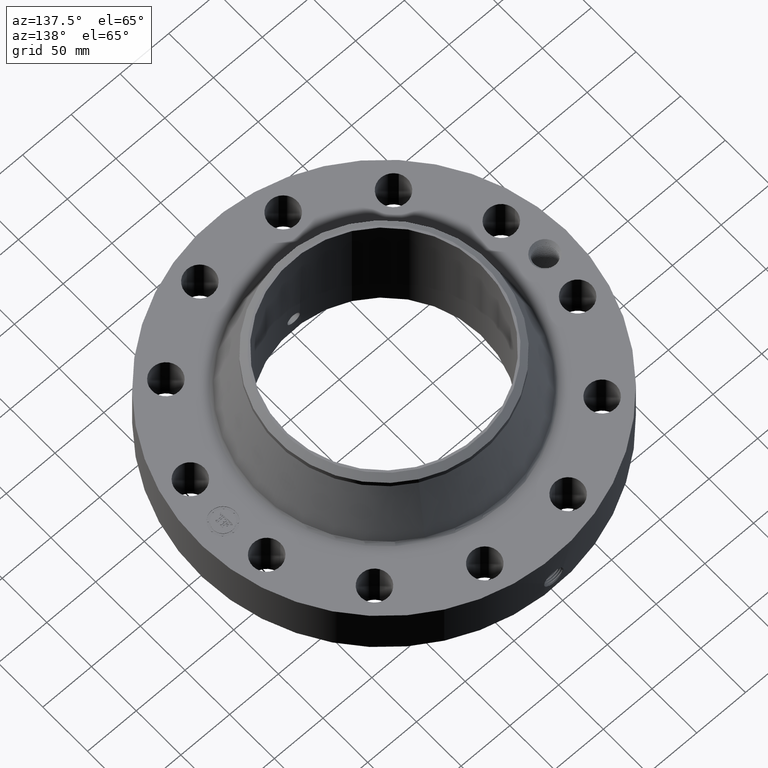
[diagram: clean part render]
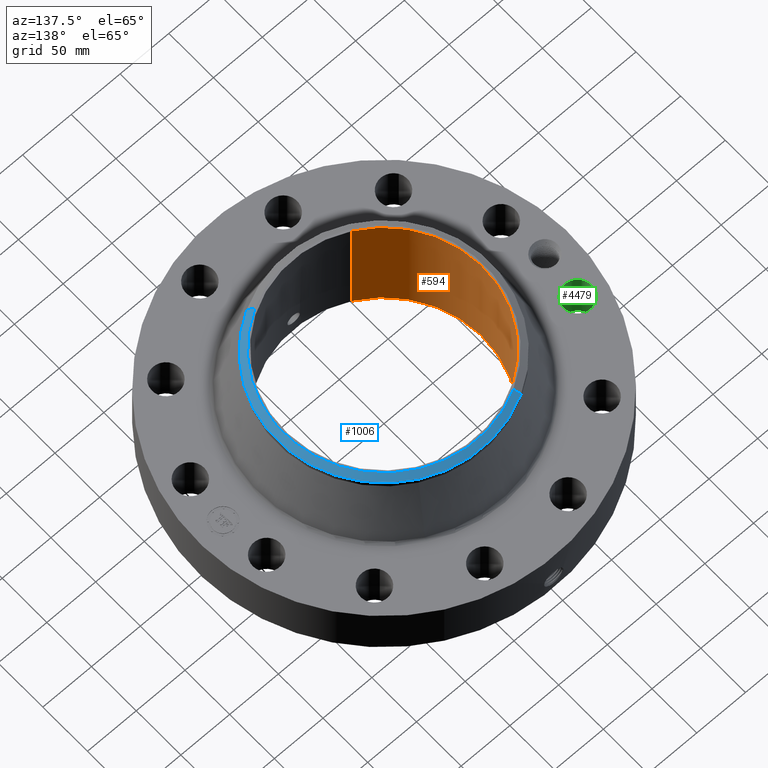
[diagram: same view with three faces highlighted in distinct colors, each labeled with its STEP entity id]
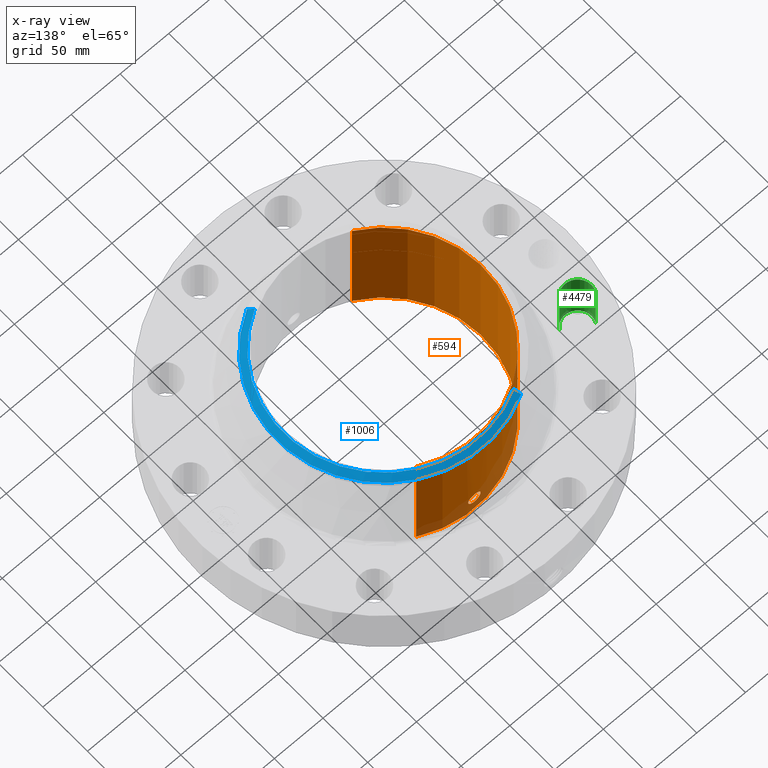
[diagram: x-ray of the same camera — body ghosted, the three highlighted faces saturated]
A machine part, auxiliary view with three faces highlighted in distinct colors.
The next image is the same camera in x-ray (body ghosted, the three faces saturated) — at least one of them is partly hidden behind the body in this view.
Their STEP definitions:

[orange] entity #594 — the highlighted cylindrical surface (partial cylindrical patch) has radius 101.359 mm, axis along (0, 0, -1).
#232=AXIS2_PLACEMENT_3D('Cylinder Axis2P3D',#229,#230,#231) ;
#533=AXIS2_PLACEMENT_3D('Circle Axis2P3D',#531,#532,$) ;
#543=AXIS2_PLACEMENT_3D('Circle Axis2P3D',#541,#542,$) ;
#229=CARTESIAN_POINT('Axis2P3D Location',(0.,0.,2.46600000001)) ;
#238=CARTESIAN_POINT('Vertex',(1.91314761181,3.50199321324,4.93200000002)) ;
#240=CARTESIAN_POINT('Vertex',(-1.91314761181,-3.50199321324,4.93200000002)) ;
#243=CARTESIAN_POINT('Line Origine',(1.91314761181,3.50199321324,2.46600000001)) ;
#247=CARTESIAN_POINT('Vertex',(1.91314761181,3.50199321324,-8.95171950564E-015)) ;
#254=CARTESIAN_POINT('Vertex',(-1.91314761181,-3.50199321324,-8.95171950564E-015)) ;
#257=CARTESIAN_POINT('Line Origine',(-1.91314761181,-3.50199321324,2.46600000001)) ;
#531=CARTESIAN_POINT('Axis2P3D Location',(0.,0.,4.93200000002)) ;
#541=CARTESIAN_POINT('Axis2P3D Location',(0.,0.,-1.00706844438E-014)) ;
#553=CARTESIAN_POINT('Control Point',(0.219395640473,3.98446430566,0.869856384655)) ;
#554=CARTESIAN_POINT('Control Point',(0.206921908806,3.98515114387,0.892689397315)) ;
#555=CARTESIAN_POINT('Control Point',(0.191479279893,3.98595249709,0.913897027814)) ;
#556=CARTESIAN_POINT('Control Point',(0.173347861513,3.98680640055,0.932967267437)) ;
#557=CARTESIAN_POINT('Control Point',(0.112155204389,3.98927553641,0.982435971533)) ;
#558=CARTESIAN_POINT('Control Point',(0.0350142039186,3.99087971721,1.00596590749)) ;
#559=CARTESIAN_POINT('Control Point',(-0.0195261078806,3.99100007172,1.00761227335)) ;
#560=CARTESIAN_POINT('Control Point',(-0.124101324596,3.98923588509,0.982487524965)) ;
#561=CARTESIAN_POINT('Control Point',(-0.203140141366,3.98558147934,0.909615874574)) ;
#562=CARTESIAN_POINT('Control Point',(-0.232127874425,3.9837808419,0.863423638367)) ;
#563=CARTESIAN_POINT('Control Point',(-0.255826572318,3.98229644891,0.785258636298)) ;
#564=CARTESIAN_POINT('Control Point',(-0.248307422956,3.98276700729,0.705848031712)) ;
#565=CARTESIAN_POINT('Control Point',(-0.242073059859,3.98316297559,0.679246036421)) ;
#566=CARTESIAN_POINT('Control Point',(-0.23233062109,3.9837520698,0.653820938551)) ;
#567=CARTESIAN_POINT('Control Point',(-0.219395640473,3.98446430566,0.630143615351)) ;
#568=CARTESIAN_POINT('Vertex',(0.219395640473,3.98446430566,0.869856384655)) ;
#570=CARTESIAN_POINT('Vertex',(-0.219395640473,3.98446430566,0.630143615351)) ;
#574=CARTESIAN_POINT('Control Point',(-0.219395640473,3.98446430566,0.630143615351)) ;
#575=CARTESIAN_POINT('Control Point',(-0.206921908801,3.98515114387,0.607310602682)) ;
#576=CARTESIAN_POINT('Control Point',(-0.191479279881,3.98595249709,0.586102972175)) ;
#577=CARTESIAN_POINT('Control Point',(-0.173347861528,3.98680640055,0.567032732581)) ;
#578=CARTESIAN_POINT('Control Point',(-0.112155204399,3.98927553641,0.517564028476)) ;
#579=CARTESIAN_POINT('Control Point',(-0.0350142039215,3.99087971721,0.494034092518)) ;
#580=CARTESIAN_POINT('Control Point',(0.0195261078881,3.99100007172,0.492387726655)) ;
#581=CARTESIAN_POINT('Control Point',(0.124101324585,3.98923588509,0.51751247504)) ;
#582=CARTESIAN_POINT('Control Point',(0.203140141344,3.98558147934,0.590384125413)) ;
#583=CARTESIAN_POINT('Control Point',(0.232127874436,3.9837808419,0.636576361672)) ;
#584=CARTESIAN_POINT('Control Point',(0.255826572311,3.98229644891,0.714741363708)) ;
#585=CARTESIAN_POINT('Control Point',(0.248307422959,3.98276700729,0.794151968261)) ;
#586=CARTESIAN_POINT('Control Point',(0.242073059846,3.98316297559,0.820753963618)) ;
#587=CARTESIAN_POINT('Control Point',(0.232330621082,3.9837520698,0.846179061471)) ;
#588=CARTESIAN_POINT('Control Point',(0.219395640473,3.98446430566,0.869856384655)) ;
#230=DIRECTION('Axis2P3D Direction',(0.,0.,-0.0393700787402)) ;
#231=DIRECTION('Axis2P3D XDirection',(-0.0188750212049,-0.0345504945626,0.)) ;
#244=DIRECTION('Vector Direction',(0.,0.,-0.0393700787402)) ;
#258=DIRECTION('Vector Direction',(0.,0.,-0.0393700787402)) ;
#532=DIRECTION('Axis2P3D Direction',(0.,0.,-0.0393700787402)) ;
#542=DIRECTION('Axis2P3D Direction',(0.,0.,-0.0393700787402)) ;
#245=VECTOR('Line Direction',#244,0.0393700787402) ;
#259=VECTOR('Line Direction',#258,0.0393700787402) ;
#547=ORIENTED_EDGE('',*,*,#535,.F.) ;
#548=ORIENTED_EDGE('',*,*,#261,.T.) ;
#549=ORIENTED_EDGE('',*,*,#545,.T.) ;
#550=ORIENTED_EDGE('',*,*,#249,.F.) ;
#591=ORIENTED_EDGE('',*,*,#572,.F.) ;
#592=ORIENTED_EDGE('',*,*,#589,.F.) ;
#593=FACE_BOUND('',#590,.T.) ;
#594=ADVANCED_FACE('PartBody',(#551,#593),#233,.F.) ;
#552=B_SPLINE_CURVE_WITH_KNOTS('',5,(#553,#554,#555,#556,#557,#558,#559,#560,#561,#562,#563,#564,#565,#566,#567),.UNSPECIFIED.,.F.,.U.,(6,3,3,3,6),(0.,4.67460828365,14.0214498493,23.3713998524,28.2188640398),.UNSPECIFIED.) ;
#573=B_SPLINE_CURVE_WITH_KNOTS('',5,(#574,#575,#576,#577,#578,#579,#580,#581,#582,#583,#584,#585,#586,#587,#588),.UNSPECIFIED.,.F.,.U.,(6,3,3,3,6),(0.,4.67460828553,14.0214498507,23.3713998511,28.2188640353),.UNSPECIFIED.) ;
#534=CIRCLE('generated circle',#533,3.99050000002) ;
#544=CIRCLE('generated circle',#543,3.99050000002) ;
#233=CYLINDRICAL_SURFACE('generated cylinder',#232,3.99050000002) ;
#249=EDGE_CURVE('',#239,#248,#246,.T.) ;
#261=EDGE_CURVE('',#241,#255,#260,.T.) ;
#535=EDGE_CURVE('',#241,#239,#534,.T.) ;
#545=EDGE_CURVE('',#255,#248,#544,.T.) ;
#572=EDGE_CURVE('',#569,#571,#552,.T.) ;
#589=EDGE_CURVE('',#571,#569,#573,.T.) ;
#546=EDGE_LOOP('',(#547,#548,#549,#550)) ;
#590=EDGE_LOOP('',(#591,#592)) ;
#551=FACE_OUTER_BOUND('',#546,.T.) ;
#246=LINE('Line',#243,#245) ;
#260=LINE('Line',#257,#259) ;
#239=VERTEX_POINT('',#238) ;
#241=VERTEX_POINT('',#240) ;
#248=VERTEX_POINT('',#247) ;
#255=VERTEX_POINT('',#254) ;
#569=VERTEX_POINT('',#568) ;
#571=VERTEX_POINT('',#570) ;

[blue] entity #1006 — the highlighted conical surface has half-angle 52.5 deg.
#515=AXIS2_PLACEMENT_3D('Circle Axis2P3D',#513,#514,$) ;
#951=AXIS2_PLACEMENT_3D('Cone Axis2P3D',#948,#949,#950) ;
#989=AXIS2_PLACEMENT_3D('Circle Axis2P3D',#987,#988,$) ;
#996=AXIS2_PLACEMENT_3D('Circle Axis2P3D',#994,#995,$) ;
#513=CARTESIAN_POINT('Axis2P3D Location',(0.,0.,4.93200000002)) ;
#517=CARTESIAN_POINT('Vertex',(1.95089765422,-3.57109420236,4.93200000002)) ;
#519=CARTESIAN_POINT('Vertex',(-1.95089765422,3.57109420236,4.93200000002)) ;
#948=CARTESIAN_POINT('Axis2P3D Location',(0.,0.,4.93200000002)) ;
#953=CARTESIAN_POINT('Line Origine',(2.00980942665,-3.67893147847,4.83771092016)) ;
#957=CARTESIAN_POINT('Vertex',(2.06872119909,-3.78676875457,4.74342184029)) ;
#960=CARTESIAN_POINT('Line Origine',(-2.00980942665,3.67893147847,4.83771092016)) ;
#964=CARTESIAN_POINT('Vertex',(-2.06872119909,3.78676875457,4.74342184029)) ;
#987=CARTESIAN_POINT('Axis2P3D Location',(0.,0.,4.74342184029)) ;
#991=CARTESIAN_POINT('Vertex',(2.06872119909,3.78676875457,4.74342184029)) ;
#994=CARTESIAN_POINT('Axis2P3D Location',(0.,0.,4.74342184029)) ;
#514=DIRECTION('Axis2P3D Direction',(0.,0.,-0.0393700787402)) ;
#949=DIRECTION('Axis2P3D Direction',(-0.,-0.,-0.0393700787402)) ;
#950=DIRECTION('Axis2P3D XDirection',(-0.0188750212049,0.0345504945626,0.)) ;
#954=DIRECTION('Vector Direction',(0.014974561121,-0.02741075027,-0.023966985394)) ;
#961=DIRECTION('Vector Direction',(-0.014974561121,0.02741075027,-0.023966985394)) ;
#988=DIRECTION('Axis2P3D Direction',(0.,0.,-0.0393700787402)) ;
#995=DIRECTION('Axis2P3D Direction',(0.,0.,-0.0393700787402)) ;
#955=VECTOR('Line Direction',#954,0.0393700787402) ;
#962=VECTOR('Line Direction',#961,0.0393700787402) ;
#1000=ORIENTED_EDGE('',*,*,#966,.F.) ;
#1001=ORIENTED_EDGE('',*,*,#521,.F.) ;
#1002=ORIENTED_EDGE('',*,*,#959,.T.) ;
#1003=ORIENTED_EDGE('',*,*,#993,.T.) ;
#1004=ORIENTED_EDGE('',*,*,#998,.F.) ;
#1006=ADVANCED_FACE('PartBody',(#1005),#952,.T.) ;
#516=CIRCLE('generated circle',#515,4.0692401575) ;
#990=CIRCLE('generated circle',#989,4.31500000002) ;
#997=CIRCLE('generated circle',#996,4.31500000002) ;
#952=CONICAL_SURFACE('Cone',#951,4.0692401575,0.916297857297) ;
#521=EDGE_CURVE('',#518,#520,#516,.F.) ;
#959=EDGE_CURVE('',#518,#958,#956,.T.) ;
#966=EDGE_CURVE('',#520,#965,#963,.T.) ;
#993=EDGE_CURVE('',#958,#992,#990,.F.) ;
#998=EDGE_CURVE('',#965,#992,#997,.T.) ;
#999=EDGE_LOOP('',(#1000,#1001,#1002,#1003,#1004)) ;
#1005=FACE_OUTER_BOUND('',#999,.T.) ;
#956=LINE('Line',#953,#955) ;
#963=LINE('Line',#960,#962) ;
#518=VERTEX_POINT('',#517) ;
#520=VERTEX_POINT('',#519) ;
#958=VERTEX_POINT('',#957) ;
#965=VERTEX_POINT('',#964) ;
#992=VERTEX_POINT('',#991) ;

[green] entity #4479 — the highlighted cylindrical surface (edge-blend (fillet) strip) has radius 14.224 mm, axis along (-0, 0, -1).
#3105=AXIS2_PLACEMENT_3D('Circle Axis2P3D',#3103,#3104,$) ;
#4452=AXIS2_PLACEMENT_3D('Cylinder Axis2P3D',#4449,#4450,#4451) ;
#4463=AXIS2_PLACEMENT_3D('Circle Axis2P3D',#4461,#4462,$) ;
#3098=CARTESIAN_POINT('Vertex',(-6.76996410556,1.95080209479,2.19200000001)) ;
#3100=CARTESIAN_POINT('Vertex',(-5.78707163624,1.41384549155,2.19200000001)) ;
#3103=CARTESIAN_POINT('Axis2P3D Location',(-6.2785178709,1.68232379317,2.19200000001)) ;
#4449=CARTESIAN_POINT('Axis2P3D Location',(-6.2785178709,1.68232379317,2.18806299213)) ;
#4454=CARTESIAN_POINT('Line Origine',(-5.78707163624,1.41384549155,1.096)) ;
#4458=CARTESIAN_POINT('Vertex',(-5.78707163624,1.41384549155,0.)) ;
#4461=CARTESIAN_POINT('Axis2P3D Location',(-6.2785178709,1.68232379317,0.)) ;
#4465=CARTESIAN_POINT('Vertex',(-6.76996410556,1.95080209479,0.)) ;
#4468=CARTESIAN_POINT('Line Origine',(-6.76996410556,1.95080209479,1.096)) ;
#3104=DIRECTION('Axis2P3D Direction',(0.,0.,-0.0393700787402)) ;
#4450=DIRECTION('Axis2P3D Direction',(-0.,0.,-0.0393700787402)) ;
#4451=DIRECTION('Axis2P3D XDirection',(-0.0345504945626,0.0188750212049,0.)) ;
#4455=DIRECTION('Vector Direction',(0.,0.,-0.0393700787402)) ;
#4462=DIRECTION('Axis2P3D Direction',(-0.,0.,-0.0393700787402)) ;
#4469=DIRECTION('Vector Direction',(0.,0.,-0.0393700787402)) ;
#4456=VECTOR('Line Direction',#4455,0.0393700787402) ;
#4470=VECTOR('Line Direction',#4469,0.0393700787402) ;
#4474=ORIENTED_EDGE('',*,*,#4460,.F.) ;
#4475=ORIENTED_EDGE('',*,*,#4467,.T.) ;
#4476=ORIENTED_EDGE('',*,*,#4472,.T.) ;
#4477=ORIENTED_EDGE('',*,*,#3107,.F.) ;
#4479=ADVANCED_FACE('PartBody',(#4478),#4453,.F.) ;
#3106=CIRCLE('generated circle',#3105,0.560000000002) ;
#4464=CIRCLE('generated circle',#4463,0.560000000002) ;
#4453=CYLINDRICAL_SURFACE('generated cylinder',#4452,0.560000000002) ;
#3107=EDGE_CURVE('',#3101,#3099,#3106,.T.) ;
#4460=EDGE_CURVE('',#4459,#3101,#4457,.F.) ;
#4467=EDGE_CURVE('',#4459,#4466,#4464,.T.) ;
#4472=EDGE_CURVE('',#4466,#3099,#4471,.F.) ;
#4473=EDGE_LOOP('',(#4474,#4475,#4476,#4477)) ;
#4478=FACE_OUTER_BOUND('',#4473,.T.) ;
#4457=LINE('Line',#4454,#4456) ;
#4471=LINE('Line',#4468,#4470) ;
#3099=VERTEX_POINT('',#3098) ;
#3101=VERTEX_POINT('',#3100) ;
#4459=VERTEX_POINT('',#4458) ;
#4466=VERTEX_POINT('',#4465) ;